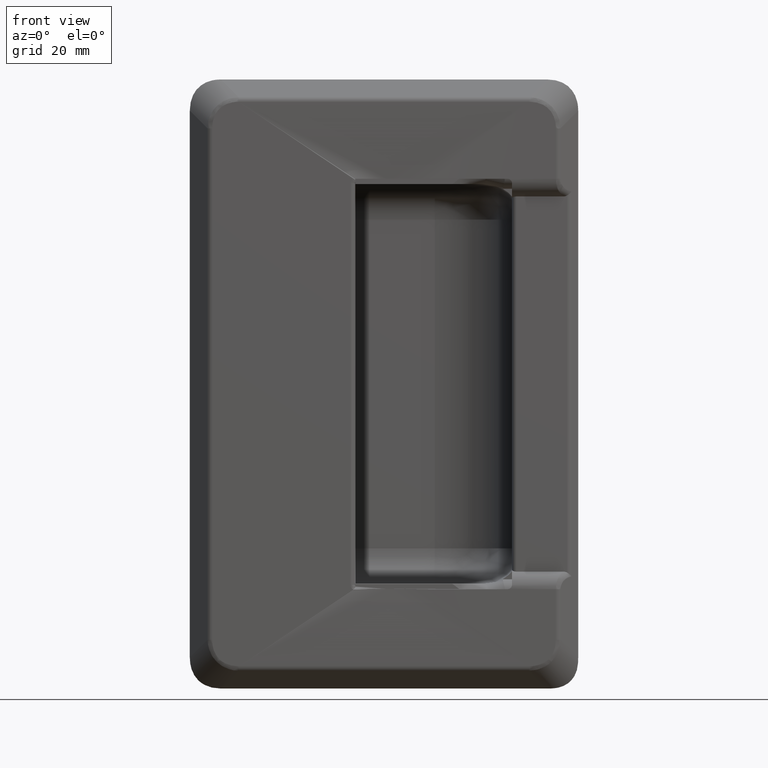
[diagram: clean part render]
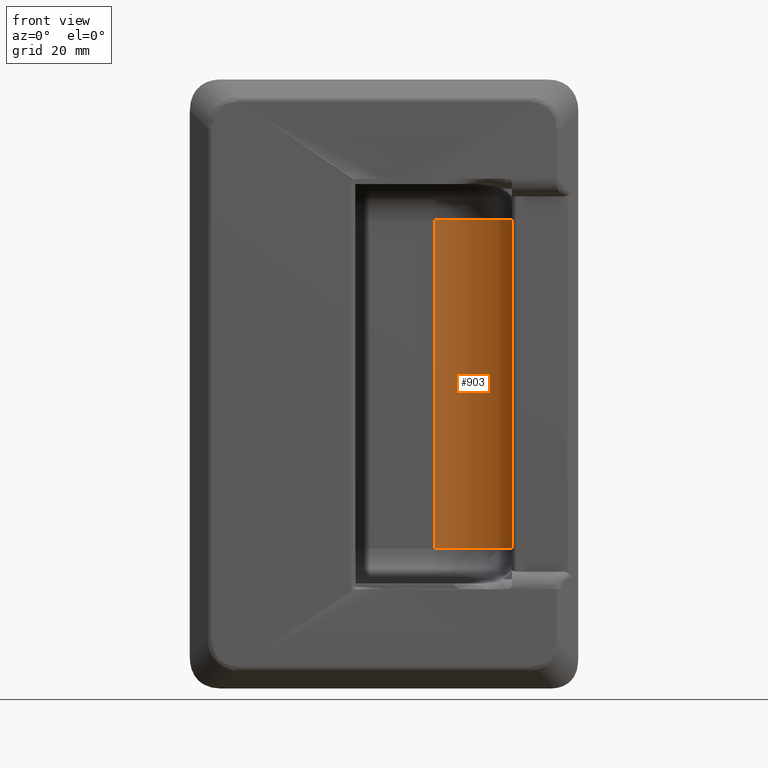
[diagram: same view with one face highlighted and labeled with its STEP entity id]
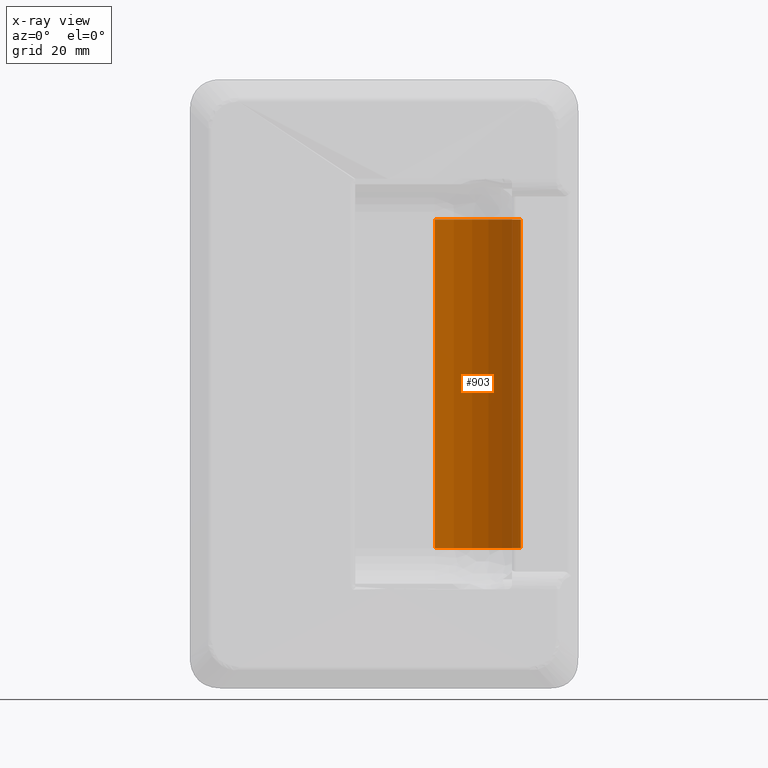
[diagram: x-ray of the same camera — body ghosted, the highlighted face saturated]
A machine part, front view. The second image highlights one B-rep face of the part: STEP entity #903.
The next image is the same camera in x-ray: the body ghosted, the highlighted face saturated — about 0% of this face is hidden behind the body in this view.
In plain terms, the highlighted cylindrical surface (partial cylindrical patch) has radius 19.5 mm, axis along (0, 0, -1).
Its self-contained STEP definition (entity closure, byte-faithful):
#903=ADVANCED_FACE('',(#3293),#3292,.F.);
#3292=CYLINDRICAL_SURFACE('',#8466,1.95000000000E+01);
#3293=FACE_OUTER_BOUND('',#8467,.T.);
#8463=CARTESIAN_POINT('',(1.14999999995E+01,6.00000000016E+00,-3.72500000002E+01));
#8464=DIRECTION('',(2.56846753608E-15,1.14900328964E-17,-1.00000000000E+00));
#8465=DIRECTION('',(-1.00000000000E+00,-1.54861878307E-15,-2.56846753608E-15));
#8466=AXIS2_PLACEMENT_3D('',#8463,#8464,#8465);
#8467=EDGE_LOOP('',(#12290,#12291,#12292,#12293));
#12290=ORIENTED_EDGE('',*,*,#14690,.T.);
#12291=ORIENTED_EDGE('',*,*,#14685,.T.);
#12292=ORIENTED_EDGE('',*,*,#14691,.T.);
#12293=ORIENTED_EDGE('',*,*,#14659,.T.);
#14659=EDGE_CURVE('',#18519,#18583,#18590,.T.);
#14685=EDGE_CURVE('',#18708,#18755,#18762,.T.);
#14690=EDGE_CURVE('',#18583,#18708,#18794,.T.);
#14691=EDGE_CURVE('',#18755,#18519,#18800,.T.);
#18519=VERTEX_POINT('',#26970);
#18583=VERTEX_POINT('',#27014);
#18590=CIRCLE('',#27022,1.95000000000E+01);
#18708=VERTEX_POINT('',#27098);
#18755=VERTEX_POINT('',#27127);
#18762=CIRCLE('',#27135,1.95000000000E+01);
#18794=LINE('',#27152,#27153);
#18800=LINE('',#27155,#27156);
#26970=CARTESIAN_POINT('',(3.09999999995E+01,6.00000000016E+00,3.72500000000E+01));
#27014=CARTESIAN_POINT('',(1.14999999995E+01,2.55000000002E+01,3.72499999999E+01));
#27019=CARTESIAN_POINT('',(1.14999999995E+01,6.00000000016E+00,3.72500000000E+01));
#27020=DIRECTION('',(-3.27942801120E-15,0.00000000000E+00,1.00000000000E+00));
#27021=DIRECTION('',(-1.00000000000E+00,-0.00000000000E+00,-3.27942801120E-15));
#27022=AXIS2_PLACEMENT_3D('',#27019,#27020,#27021);
#27098=CARTESIAN_POINT('',(1.14999999995E+01,2.55000000002E+01,-3.72500000002E+01));
#27127=CARTESIAN_POINT('',(3.09999999995E+01,6.00000000016E+00,-3.72500000002E+01));
#27132=CARTESIAN_POINT('',(1.14999999995E+01,6.00000000016E+00,-3.72500000002E+01));
#27133=DIRECTION('',(3.10923114819E-15,-2.83236103352E-31,-1.00000000000E+00));
#27134=DIRECTION('',(-9.10952225333E-17,-1.00000000000E+00,-0.00000000000E+00));
#27135=AXIS2_PLACEMENT_3D('',#27132,#27133,#27134);
#27152=CARTESIAN_POINT('',(1.14999999995E+01,2.55000000002E+01,3.72500000000E+01));
#27153=VECTOR('',#27154,7.45000000002E+01);
#27154=DIRECTION('',(0.00000000000E+00,0.00000000000E+00,-1.00000000000E+00));
#27155=CARTESIAN_POINT('',(3.09999999995E+01,6.00000000016E+00,-3.72500000002E+01));
#27156=VECTOR('',#27157,7.45000000002E+01);
#27157=DIRECTION('',(-2.67049618809E-15,0.00000000000E+00,1.00000000000E+00));